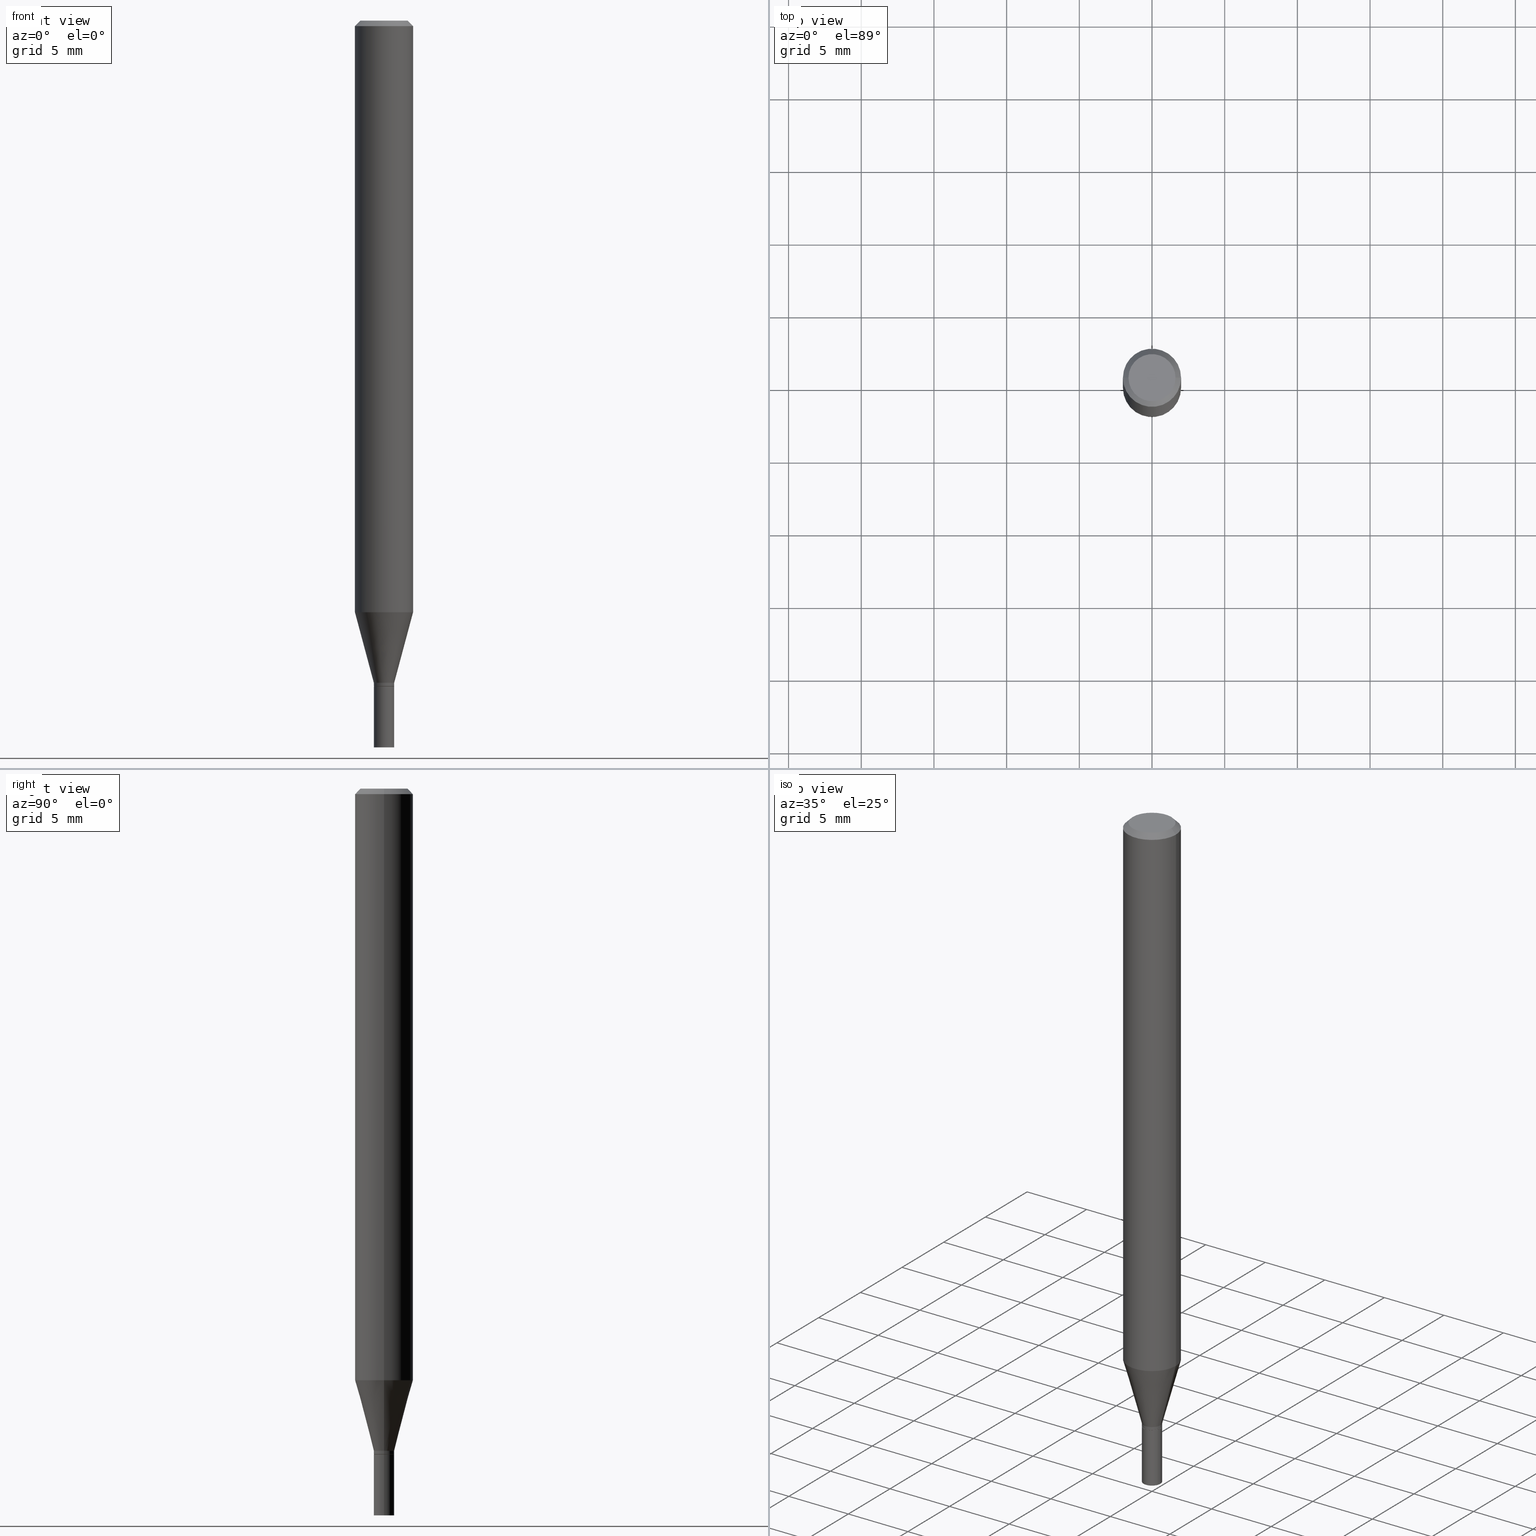
[diagram: canonical four-view strip — front | top / right | iso, engineering-drawing reading convention]
A machine part, canonical four-view strip (front | top / right | iso — engineering-drawing reading convention). The complete STEP part file that produces these views, byte-faithful:
ISO-10303-21;
HEADER;
FILE_DESCRIPTION (( 'STEP AP203' ),
    '1' );
FILE_NAME ('01887.STEP',
    '2024-03-20T02:28:08',
    ( '' ),
    ( '' ),
    'SwSTEP 2.0',
    'SolidWorks 2023',
    '' );
FILE_SCHEMA (( 'CONFIG_CONTROL_DESIGN' ));
ENDSEC;

DATA;
#1 = FACE_OUTER_BOUND ( 'NONE', #258, .T. ) ;
#2 = AXIS2_PLACEMENT_3D ( 'NONE', #396, #249, #355 ) ;
#3 = LINE ( 'NONE', #287, #421 ) ;
#4 = ORIENTED_EDGE ( 'NONE', *, *, #442, .F. ) ;
#5 = ORIENTED_EDGE ( 'NONE', *, *, #321, .F. ) ;
#6 = DIRECTION ( 'NONE',  ( 1.000000000000000000, -6.982962677686265922E-15, 0.000000000000000000 ) ) ;
#7 = VERTEX_POINT ( 'NONE', #110 ) ;
#8 = VERTEX_POINT ( 'NONE', #98 ) ;
#9 = DIRECTION ( 'NONE',  ( 0.2588190451025213501, 1.565188264969621968E-15, 0.9659258262890682012 ) ) ;
#10 = AXIS2_PLACEMENT_3D ( 'NONE', #301, #393, #96 ) ;
#11 = ADVANCED_FACE ( 'NONE', ( #113 ), #426, .T. ) ;
#12 = PERSON_AND_ORGANIZATION ( #402, #186 ) ;
#13 = DIRECTION ( 'NONE',  ( -2.438088387897960049E-29, 3.491481338843145188E-15, 1.000000000000000000 ) ) ;
#14 = ORIENTED_EDGE ( 'NONE', *, *, #244, .T. ) ;
#15 = ORIENTED_EDGE ( 'NONE', *, *, #332, .T. ) ;
#16 = LINE ( 'NONE', #19, #205 ) ;
#17 = LOCAL_TIME ( 22, 28, 8.000000000000000000, #371 ) ;
#18 = APPROVAL_ROLE ( '' ) ;
#19 = CARTESIAN_POINT ( 'NONE',  ( -0.02754999999999965463, 1.957545237019051472E-16, -1.355166617365209574E-30 ) ) ;
#20 = ORIENTED_EDGE ( 'NONE', *, *, #368, .T. ) ;
#21 = CARTESIAN_POINT ( 'NONE',  ( -0.06375000000000000111, 4.713499807438220366E-16, -5.010489548961637354E-16 ) ) ;
#22 = LINE ( 'NONE', #463, #117 ) ;
#23 = CARTESIAN_POINT ( 'NONE',  ( -0.07875000000000000056, -5.035263626391749269E-15, -1.602418998652472615 ) ) ;
#24 = CIRCLE ( 'NONE', #336, 0.02705000000000000113 ) ;
#25 = ORIENTED_EDGE ( 'NONE', *, *, #184, .T. ) ;
#26 = FACE_OUTER_BOUND ( 'NONE', #377, .T. ) ;
#27 = DIRECTION ( 'NONE',  ( -2.445468806185136597E-29, 3.491481338843145583E-15, 1.000000000000000000 ) ) ;
#28 = LINE ( 'NONE', #180, #152 ) ;
#29 = DIRECTION ( 'NONE',  ( 1.000000000000000000, -6.982962677686256455E-15, 0.000000000000000000 ) ) ;
#30 = CARTESIAN_POINT ( 'NONE',  ( 3.668203209277705088E-31, -5.237222008264718399E-17, -0.01499999999999999944 ) ) ;
#31 = PERSON_AND_ORGANIZATION ( #402, #186 ) ;
#32 = DIRECTION ( 'NONE',  ( -2.445468806185136877E-29, 3.491481338843145188E-15, 1.000000000000000000 ) ) ;
#33 = ORIENTED_EDGE ( 'NONE', *, *, #139, .T. ) ;
#34 = CONICAL_SURFACE ( 'NONE', #295, 0.07875000000000000056, 0.7853981633974651544 ) ;
#35 = CIRCLE ( 'NONE', #140, 0.02755000000000000157 ) ;
#36 = ORIENTED_EDGE ( 'NONE', *, *, #461, .T. ) ;
#37 = CARTESIAN_POINT ( 'NONE',  ( 0.02755000000000000157, -6.487870623838331454E-15, -1.803099999999999925 ) ) ;
#38 = CARTESIAN_POINT ( 'NONE',  ( 0.000000000000000000, 0.000000000000000000, 0.000000000000000000 ) ) ;
#39 = ADVANCED_FACE ( 'NONE', ( #212 ), #346, .T. ) ;
#40 = CIRCLE ( 'NONE', #167, 0.06375000000000000111 ) ;
#41 = AXIS2_PLACEMENT_3D ( 'NONE', #181, #466, #252 ) ;
#42 = CARTESIAN_POINT ( 'NONE',  ( 0.02754999999999965463, -6.454352402985435430E-15, -1.793499999999999872 ) ) ;
#43 = VERTEX_POINT ( 'NONE', #236 ) ;
#44 = CYLINDRICAL_SURFACE ( 'NONE', #265, 0.02754999999999965463 ) ;
#45 = ORIENTED_EDGE ( 'NONE', *, *, #332, .F. ) ;
#46 = APPLICATION_CONTEXT ( 'configuration controlled 3d designs of mechanical parts and assemblies' ) ;
#47 = ORIENTED_EDGE ( 'NONE', *, *, #234, .T. ) ;
#48 = EDGE_CURVE ( 'NONE', #328, #438, #185, .T. ) ;
#49 = PRODUCT_DEFINITION_SHAPE ( 'NONE', 'NONE',  #240 ) ;
#50 = CIRCLE ( 'NONE', #41, 0.02754999999999965463 ) ;
#51 = SHAPE_DEFINITION_REPRESENTATION ( #49, #307 ) ;
#52 = CARTESIAN_POINT ( 'NONE',  ( 4.409424804432419001E-29, -6.295490002068074661E-15, -1.803099999999999703 ) ) ;
#53 = VERTEX_POINT ( 'NONE', #21 ) ;
#54 = PERSON_AND_ORGANIZATION ( #402, #186 ) ;
#55 = DIRECTION ( 'NONE',  ( 1.000000000000000000, -6.982962677686266711E-15, 4.876176775795935793E-29 ) ) ;
#56 = DIRECTION ( 'NONE',  ( 1.000000000000000000, -6.982962677686265922E-15, 4.852736867747365646E-29 ) ) ;
#57 = DIRECTION ( 'NONE',  ( -2.445468806185136597E-29, 3.491481338843145583E-15, 1.000000000000000000 ) ) ;
#58 = DIRECTION ( 'NONE',  ( -2.445468806185136877E-29, 3.491481338843145188E-15, 1.000000000000000000 ) ) ;
#59 = APPROVAL_DATE_TIME ( #274, #136 ) ;
#60 = MANIFOLD_SOLID_BREP ( 'Body-Move/Copy2[1]', #86 ) ;
#61 = ADVANCED_FACE ( 'NONE', ( #266 ), #34, .T. ) ;
#62 = COORDINATED_UNIVERSAL_TIME_OFFSET ( 5, 0, .BEHIND. ) ;
#63 = CARTESIAN_POINT ( 'NONE',  ( 4.385948303893042033E-29, -6.261971781215181003E-15, -1.793499999999999872 ) ) ;
#64 = CONICAL_SURFACE ( 'NONE', #147, 0.02754999999999965463, 0.2617993877991500740 ) ;
#65 = CARTESIAN_POINT ( 'NONE',  ( 0.07875000000000000056, -6.144724341670621417E-15, -1.602418998652472615 ) ) ;
#66 = PERSON_AND_ORGANIZATION ( #402, #186 ) ;
#67 = DIRECTION ( 'NONE',  ( 2.438088387897960049E-29, -3.491481338843145188E-15, -1.000000000000000000 ) ) ;
#68 = LINE ( 'NONE', #383, #342 ) ;
#69 = EDGE_LOOP ( 'NONE', ( #14, #303, #203, #45 ) ) ;
#70 = CALENDAR_DATE ( 2024, 19, 3 ) ;
#71 = DIRECTION ( 'NONE',  ( 1.000000000000000000, -6.982962677686256455E-15, 0.000000000000000000 ) ) ;
#72 = DIRECTION ( 'NONE',  ( 1.000000000000000000, -6.982962677686256455E-15, 0.000000000000000000 ) ) ;
#73 = APPROVAL_PERSON_ORGANIZATION ( #97, #300, #18 ) ;
#74 = EDGE_CURVE ( 'NONE', #438, #328, #302, .T. ) ;
#75 = PLANE ( 'NONE',  #2 ) ;
#76 = EDGE_CURVE ( 'NONE', #7, #392, #124, .T. ) ;
#77 = EDGE_LOOP ( 'NONE', ( #367, #228, #33, #231 ) ) ;
#78 = DATE_TIME_ROLE ( 'creation_date' ) ;
#79 = CARTESIAN_POINT ( 'NONE',  ( 4.385948303893042033E-29, -6.261971781215181003E-15, -1.793499999999999872 ) ) ;
#80 = CIRCLE ( 'NONE', #335, 0.02705000000000000113 ) ;
#81 = CIRCLE ( 'NONE', #448, 0.02755000000000000157 ) ;
#82 = CC_DESIGN_APPROVAL ( #270, ( #233 ) ) ;
#83 = ADVANCED_FACE ( 'NONE', ( #314 ), #462, .T. ) ;
#84 = ORIENTED_EDGE ( 'NONE', *, *, #439, .T. ) ;
#85 = ORIENTED_EDGE ( 'NONE', *, *, #234, .F. ) ;
#86 = CLOSED_SHELL ( 'NONE', ( #108, #366, #11, #215 ) ) ;
#87 = AXIS2_PLACEMENT_3D ( 'NONE', #146, #67, #207 ) ;
#88 = PRODUCT_DEFINITION_FORMATION_WITH_SPECIFIED_SOURCE ( 'ANY', '', #260, .NOT_KNOWN. ) ;
#89 = ORIENTED_EDGE ( 'NONE', *, *, #48, .T. ) ;
#90 = ORIENTED_EDGE ( 'NONE', *, *, #155, .T. ) ;
#91 = PRODUCT_RELATED_PRODUCT_CATEGORY ( 'detail', '', ( #260 ) ) ;
#92 = ORIENTED_EDGE ( 'NONE', *, *, #298, .T. ) ;
#93 = CIRCLE ( 'NONE', #349, 0.02754999999999965463 ) ;
#94 = VECTOR ( 'NONE', #219, 39.37007874015748143 ) ;
#95 = DIRECTION ( 'NONE',  ( 1.000000000000000000, -6.982962677686265922E-15, 0.000000000000000000 ) ) ;
#96 = DIRECTION ( 'NONE',  ( 1.000000000000000000, -6.982962677686265922E-15, 4.876176775795936353E-29 ) ) ;
#97 = PERSON_AND_ORGANIZATION ( #402, #186 ) ;
#98 = CARTESIAN_POINT ( 'NONE',  ( 0.02755000000000000157, -7.065361637282988500E-15, -1.968500000000000139 ) ) ;
#99 = DIRECTION ( 'NONE',  ( -2.445468806185136597E-29, 3.491481338843145583E-15, 1.000000000000000000 ) ) ;
#100 = DIRECTION ( 'NONE',  ( -2.445468806185136877E-29, 3.491481338843145188E-15, 1.000000000000000000 ) ) ;
#101 = DIRECTION ( 'NONE',  ( -2.445468806185136597E-29, 3.491481338843145583E-15, 1.000000000000000000 ) ) ;
#102 = CARTESIAN_POINT ( 'NONE',  ( 0.02755000000000000157, -1.923806217702566451E-16, 1.343386701731780509E-30 ) ) ;
#103 = AXIS2_PLACEMENT_3D ( 'NONE', #299, #57, #198 ) ;
#104 = DIRECTION ( 'NONE',  ( -0.7071067811865656694, 7.493145998870420424E-15, 0.7071067811865294761 ) ) ;
#105 = AXIS2_PLACEMENT_3D ( 'NONE', #145, #107, #247 ) ;
#106 = ORIENTED_EDGE ( 'NONE', *, *, #321, .T. ) ;
#107 = DIRECTION ( 'NONE',  ( -2.445468806185136597E-29, 3.491481338843145583E-15, 1.000000000000000000 ) ) ;
#108 = ADVANCED_FACE ( 'NONE', ( #429 ), #337, .T. ) ;
#109 = CARTESIAN_POINT ( 'NONE',  ( -0.07875000000000000056, 5.595524044110789003E-16, -3.873661383575737792E-30 ) ) ;
#110 = CARTESIAN_POINT ( 'NONE',  ( -0.02754999999999965463, -6.097989737696748972E-15, -1.802599999999999980 ) ) ;
#111 = DIRECTION ( 'NONE',  ( 1.000000000000000000, -6.982962677686274599E-15, 0.000000000000000000 ) ) ;
#112 = CARTESIAN_POINT ( 'NONE',  ( 4.813905344975441835E-29, -6.872981015512731707E-15, -1.968500000000000139 ) ) ;
#113 = FACE_OUTER_BOUND ( 'NONE', #333, .T. ) ;
#114 = CARTESIAN_POINT ( 'NONE',  ( 4.385948303893042033E-29, -6.261971781215181003E-15, -1.793499999999999872 ) ) ;
#115 = ORIENTED_EDGE ( 'NONE', *, *, #400, .F. ) ;
#116 =( CONVERSION_BASED_UNIT ( 'INCH', #401 ) LENGTH_UNIT ( ) NAMED_UNIT ( #364 ) );
#117 = VECTOR ( 'NONE', #32, 39.37007874015748143 ) ;
#118 = LOCAL_TIME ( 22, 28, 8.000000000000000000, #238 ) ;
#119 = ORIENTED_EDGE ( 'NONE', *, *, #283, .F. ) ;
#120 = VERTEX_POINT ( 'NONE', #154 ) ;
#121 = FACE_OUTER_BOUND ( 'NONE', #257, .T. ) ;
#123 = VERTEX_POINT ( 'NONE', #133 ) ;
#122 = CC_DESIGN_PERSON_AND_ORGANIZATION_ASSIGNMENT ( #66, #422, ( #88 ) ) ;
#124 = CIRCLE ( 'NONE', #103, 0.02754999999999965463 ) ;
#125 = CARTESIAN_POINT ( 'NONE',  ( 0.000000000000000000, 0.000000000000000000, 0.000000000000000000 ) ) ;
#126 = EDGE_LOOP ( 'NONE', ( #166, #411, #92, #334 ) ) ;
#127 = ORIENTED_EDGE ( 'NONE', *, *, #373, .F. ) ;
#128 = CYLINDRICAL_SURFACE ( 'NONE', #190, 0.07875000000000000056 ) ;
#129 = DIRECTION ( 'NONE',  ( -2.445468806185136597E-29, 3.491481338843145583E-15, 1.000000000000000000 ) ) ;
#130 = CONICAL_SURFACE ( 'NONE', #370, 0.07875000000000000056, 0.7853981633974651544 ) ;
#131 = MECHANICAL_CONTEXT ( 'NONE', #46, 'mechanical' ) ;
#132 = CARTESIAN_POINT ( 'NONE',  ( 3.918665675643044057E-29, -5.594816030802827282E-15, -1.602418998652472615 ) ) ;
#133 = CARTESIAN_POINT ( 'NONE',  ( 0.02754999999999965463, -6.454352402985435430E-15, -1.793499999999999872 ) ) ;
#134 = DIRECTION ( 'NONE',  ( 0.000000000000000000, 0.000000000000000000, 1.000000000000000000 ) ) ;
#135 = CARTESIAN_POINT ( 'NONE',  ( -0.02705000000000000113, -6.103288192044966640E-15, -1.803099999999999703 ) ) ;
#136 = APPROVAL ( #218, 'UNSPECIFIED' ) ;
#137 = PERSON_AND_ORGANIZATION_ROLE ( 'creator' ) ;
#138 = APPROVAL_PERSON_ORGANIZATION ( #31, #136, #323 ) ;
#139 = EDGE_CURVE ( 'NONE', #123, #328, #193, .T. ) ;
#140 = AXIS2_PLACEMENT_3D ( 'NONE', #112, #395, #72 ) ;
#141 = DIRECTION ( 'NONE',  ( -2.445468806185136877E-29, 3.491481338843145188E-15, 1.000000000000000000 ) ) ;
#142 = DIRECTION ( 'NONE',  ( 1.000000000000000000, -6.982962677686265922E-15, 4.876176775795936353E-29 ) ) ;
#143 = DIRECTION ( 'NONE',  ( 1.000000000000000000, -6.982962677686274599E-15, 0.000000000000000000 ) ) ;
#144 = DIRECTION ( 'NONE',  ( 2.445468806185136597E-29, -3.491481338843145583E-15, -1.000000000000000000 ) ) ;
#145 = CARTESIAN_POINT ( 'NONE',  ( 4.409424804432419001E-29, -6.295490002068074661E-15, -1.803099999999999703 ) ) ;
#146 = CARTESIAN_POINT ( 'NONE',  ( 1.923806217703007474E-16, 0.02754999999999370799, -1.803099999999999925 ) ) ;
#147 = AXIS2_PLACEMENT_3D ( 'NONE', #210, #101, #387 ) ;
#148 = DIRECTION ( 'NONE',  ( 0.7071067811865594521, -7.319954787623295488E-15, -0.7071067811865355823 ) ) ;
#149 = CARTESIAN_POINT ( 'NONE',  ( 3.668203209277705088E-31, -5.237222008264718399E-17, -0.01499999999999999944 ) ) ;
#150 = EDGE_LOOP ( 'NONE', ( #454, #4 ) ) ;
#151 = EDGE_LOOP ( 'NONE', ( #345, #160 ) ) ;
#152 = VECTOR ( 'NONE', #281, 39.37007874015748143 ) ;
#153 = CONICAL_SURFACE ( 'NONE', #105, 0.02705000000000000113, 0.7853981633974739252 ) ;
#154 = CARTESIAN_POINT ( 'NONE',  ( -0.02705000000000000113, -6.100638964870857806E-15, -1.803099999999999703 ) ) ;
#155 = EDGE_CURVE ( 'NONE', #189, #313, #272, .T. ) ;
#156 = DATE_TIME_ROLE ( 'classification_date' ) ;
#157 = ORIENTED_EDGE ( 'NONE', *, *, #451, .T. ) ;
#158 = ORIENTED_EDGE ( 'NONE', *, *, #425, .T. ) ;
#159 = CARTESIAN_POINT ( 'NONE',  ( 0.02754999999999965463, -1.923806217702542292E-16, 1.343386701731763518E-30 ) ) ;
#160 = ORIENTED_EDGE ( 'NONE', *, *, #439, .F. ) ;
#161 = AXIS2_PLACEMENT_3D ( 'NONE', #251, #164, #55 ) ;
#162 = CC_DESIGN_APPROVAL ( #136, ( #88 ) ) ;
#163 = DATE_AND_TIME ( #374, #17 ) ;
#164 = DIRECTION ( 'NONE',  ( -2.445468806185136597E-29, 3.491481338843145583E-15, 1.000000000000000000 ) ) ;
#165 = DIRECTION ( 'NONE',  ( 1.000000000000000000, -6.982962677686265922E-15, 4.876176775795935232E-29 ) ) ;
#166 = ORIENTED_EDGE ( 'NONE', *, *, #341, .F. ) ;
#167 = AXIS2_PLACEMENT_3D ( 'NONE', #460, #99, #267 ) ;
#168 = PERSON_AND_ORGANIZATION ( #402, #186 ) ;
#169 = CARTESIAN_POINT ( 'NONE',  ( -0.02755000000000000157, -6.388480985088496632E-15, -1.803099999999999925 ) ) ;
#170 = PERSON_AND_ORGANIZATION ( #402, #186 ) ;
#171 = APPLICATION_CONTEXT ( 'configuration controlled 3d designs of mechanical parts and assemblies' ) ;
#172 = CALENDAR_DATE ( 2024, 19, 3 ) ;
#173 = CARTESIAN_POINT ( 'NONE',  ( 4.409424804432419562E-29, -6.295490002068075450E-15, -1.803099999999999925 ) ) ;
#174 = ORIENTED_EDGE ( 'NONE', *, *, #425, .F. ) ;
#175 = CONICAL_SURFACE ( 'NONE', #288, 0.02705000000000000113, 0.7853981633974739252 ) ;
#176 = CARTESIAN_POINT ( 'NONE',  ( 3.918665675643044057E-29, -5.594816030802827282E-15, -1.602418998652472615 ) ) ;
#177 = DESIGN_CONTEXT ( 'detailed design', #171, 'design' ) ;
#178 =( GEOMETRIC_REPRESENTATION_CONTEXT ( 3 ) GLOBAL_UNCERTAINTY_ASSIGNED_CONTEXT ( ( #305 ) ) GLOBAL_UNIT_ASSIGNED_CONTEXT ( ( #116, #290, #372 ) ) REPRESENTATION_CONTEXT ( 'NONE', 'WORKASPACE' ) );
#179 = ORIENTED_EDGE ( 'NONE', *, *, #405, .T. ) ;
#180 = CARTESIAN_POINT ( 'NONE',  ( 0.07875000000000000056, -5.499083108677934443E-16, 3.839989210939299016E-30 ) ) ;
#181 = CARTESIAN_POINT ( 'NONE',  ( 4.408202070029327321E-29, -6.293744261398653946E-15, -1.802599999999999980 ) ) ;
#182 = DIRECTION ( 'NONE',  ( -2.445468806185136597E-29, 3.491481338843145583E-15, 1.000000000000000000 ) ) ;
#183 = ORIENTED_EDGE ( 'NONE', *, *, #139, .F. ) ;
#184 = EDGE_CURVE ( 'NONE', #392, #123, #293, .T. ) ;
#185 = CIRCLE ( 'NONE', #386, 0.07875000000000000056 ) ;
#186 = ORGANIZATION ( 'UNSPECIFIED', 'UNSPECIFIED', '' ) ;
#187 = ORIENTED_EDGE ( 'NONE', *, *, #76, .T. ) ;
#188 = ADVANCED_FACE ( 'NONE', ( #121 ), #44, .T. ) ;
#189 = VERTEX_POINT ( 'NONE', #365 ) ;
#190 = AXIS2_PLACEMENT_3D ( 'NONE', #263, #379, #165 ) ;
#191 = EDGE_CURVE ( 'NONE', #406, #344, #81, .T. ) ;
#192 = CC_DESIGN_PERSON_AND_ORGANIZATION_ASSIGNMENT ( #170, #137, ( #88 ) ) ;
#193 = LINE ( 'NONE', #42, #220 ) ;
#194 = ORIENTED_EDGE ( 'NONE', *, *, #360, .T. ) ;
#195 = ORIENTED_EDGE ( 'NONE', *, *, #442, .T. ) ;
#196 = AXIS2_PLACEMENT_3D ( 'NONE', #343, #453, #6 ) ;
#197 = VECTOR ( 'NONE', #104, 39.37007874015748143 ) ;
#198 = DIRECTION ( 'NONE',  ( 1.000000000000000000, -6.982962677686274599E-15, 0.000000000000000000 ) ) ;
#199 = APPLICATION_PROTOCOL_DEFINITION ( 'international standard', 'config_control_design', 1994, #171 ) ;
#200 = ORIENTED_EDGE ( 'NONE', *, *, #400, .T. ) ;
#201 = DIRECTION ( 'NONE',  ( 0.7071067811865656694, -2.468850131082446387E-15, 0.7071067811865294761 ) ) ;
#202 = EDGE_CURVE ( 'NONE', #297, #344, #22, .T. ) ;
#203 = ORIENTED_EDGE ( 'NONE', *, *, #461, .F. ) ;
#204 = CC_DESIGN_DATE_AND_TIME_ASSIGNMENT ( #326, #78, ( #240 ) ) ;
#205 = VECTOR ( 'NONE', #141, 39.37007874015748143 ) ;
#206 = FACE_OUTER_BOUND ( 'NONE', #415, .T. ) ;
#207 = DIRECTION ( 'NONE',  ( -1.000000000000000000, 6.982962677686265922E-15, -4.876176775795935793E-29 ) ) ;
#208 = DIRECTION ( 'NONE',  ( -2.445468806185136597E-29, 3.491481338843145583E-15, 1.000000000000000000 ) ) ;
#209 = APPLICATION_PROTOCOL_DEFINITION ( 'international standard', 'config_control_design', 1994, #46 ) ;
#210 = CARTESIAN_POINT ( 'NONE',  ( 4.385948303893042033E-29, -6.261971781215181003E-15, -1.793499999999999872 ) ) ;
#211 = DIRECTION ( 'NONE',  ( 2.438088387897960049E-29, -3.491481338843145188E-15, -1.000000000000000000 ) ) ;
#212 = FACE_OUTER_BOUND ( 'NONE', #126, .T. ) ;
#213 = CARTESIAN_POINT ( 'NONE',  ( 4.409424804432419562E-29, -6.295490002068075450E-15, -1.803099999999999925 ) ) ;
#214 = FACE_OUTER_BOUND ( 'NONE', #150, .T. ) ;
#215 = ADVANCED_FACE ( 'NONE', ( #206 ), #269, .F. ) ;
#216 = DIRECTION ( 'NONE',  ( -2.445468806185136597E-29, 3.491481338843145583E-15, 1.000000000000000000 ) ) ;
#217 = ORIENTED_EDGE ( 'NONE', *, *, #368, .F. ) ;
#218 = APPROVAL_STATUS ( 'not_yet_approved' ) ;
#219 = DIRECTION ( 'NONE',  ( -0.7071067811865594521, 2.468850131082381701E-15, -0.7071067811865355823 ) ) ;
#220 = VECTOR ( 'NONE', #9, 39.37007874015747433 ) ;
#221 = APPROVAL_PERSON_ORGANIZATION ( #12, #270, #443 ) ;
#222 = ORIENTED_EDGE ( 'NONE', *, *, #237, .T. ) ;
#223 = DIRECTION ( 'NONE',  ( 1.000000000000000000, -6.982962677686266711E-15, 4.876176775795935793E-29 ) ) ;
#224 = ORIENTED_EDGE ( 'NONE', *, *, #184, .F. ) ;
#225 = EDGE_LOOP ( 'NONE', ( #89, #339, #217, #444 ) ) ;
#226 = LOCAL_TIME ( 22, 28, 8.000000000000000000, #420 ) ;
#227 = CARTESIAN_POINT ( 'NONE',  ( 1.225299589570224228E-44, -1.749403075866805544E-30, -5.010489548961605800E-16 ) ) ;
#228 = ORIENTED_EDGE ( 'NONE', *, *, #283, .T. ) ;
#229 = ORIENTED_EDGE ( 'NONE', *, *, #434, .T. ) ;
#230 = DIRECTION ( 'NONE',  ( -2.445468806185136597E-29, 3.491481338843145583E-15, 1.000000000000000000 ) ) ;
#231 = ORIENTED_EDGE ( 'NONE', *, *, #74, .F. ) ;
#232 = CLOSED_SHELL ( 'NONE', ( #83, #430, #320, #390, #327, #268, #39, #61, #315, #369, #279, #188 ) ) ;
#233 = SECURITY_CLASSIFICATION ( '', '', #350 ) ;
#234 = EDGE_CURVE ( 'NONE', #8, #406, #419, .T. ) ;
#235 = FACE_OUTER_BOUND ( 'NONE', #225, .T. ) ;
#236 = CARTESIAN_POINT ( 'NONE',  ( -0.02754999999999965463, -5.550740441952512649E-15, -1.793499999999999872 ) ) ;
#237 = EDGE_CURVE ( 'NONE', #8, #297, #376, .T. ) ;
#238 = COORDINATED_UNIVERSAL_TIME_OFFSET ( 5, 0, .BEHIND. ) ;
#239 = CARTESIAN_POINT ( 'NONE',  ( 3.668203209277705088E-31, -5.237222008264718399E-17, -0.01499999999999999944 ) ) ;
#240 = PRODUCT_DEFINITION ( 'UNKNOWN', '', #88, #177 ) ;
#241 = FACE_OUTER_BOUND ( 'NONE', #317, .T. ) ;
#242 = DIRECTION ( 'NONE',  ( 1.000000000000000000, 0.000000000000000000, 0.000000000000000000 ) ) ;
#243 = DIRECTION ( 'NONE',  ( 1.000000000000000000, -6.982962677686273810E-15, 0.000000000000000000 ) ) ;
#244 = EDGE_CURVE ( 'NONE', #246, #120, #80, .T. ) ;
#245 = DIRECTION ( 'NONE',  ( -2.445468806185136597E-29, 3.491481338843145583E-15, 1.000000000000000000 ) ) ;
#246 = VERTEX_POINT ( 'NONE', #347 ) ;
#247 = DIRECTION ( 'NONE',  ( 1.000000000000000000, -6.982962677686273810E-15, 0.000000000000000000 ) ) ;
#248 = CARTESIAN_POINT ( 'NONE',  ( -0.02755000000000000157, -6.388480985088496632E-15, -1.968500000000000139 ) ) ;
#249 = DIRECTION ( 'NONE',  ( -2.438088387897960049E-29, 3.491481338843145188E-15, 1.000000000000000000 ) ) ;
#250 = AXIS2_PLACEMENT_3D ( 'NONE', #227, #412, #56 ) ;
#251 = CARTESIAN_POINT ( 'NONE',  ( 0.000000000000000000, 0.000000000000000000, 0.000000000000000000 ) ) ;
#252 = DIRECTION ( 'NONE',  ( 1.000000000000000000, -6.982962677686274599E-15, 0.000000000000000000 ) ) ;
#253 = CC_DESIGN_PERSON_AND_ORGANIZATION_ASSIGNMENT ( #168, #457, ( #233 ) ) ;
#254 = CARTESIAN_POINT ( 'NONE',  ( -0.02754999999999965463, -6.066217257513276029E-15, -1.793499999999999872 ) ) ;
#255 = AXIS2_PLACEMENT_3D ( 'NONE', #79, #354, #143 ) ;
#256 = AXIS2_PLACEMENT_3D ( 'NONE', #213, #433, #29 ) ;
#257 = EDGE_LOOP ( 'NONE', ( #331, #187, #25, #119 ) ) ;
#258 = EDGE_LOOP ( 'NONE', ( #106, #264 ) ) ;
#259 = CIRCLE ( 'NONE', #378, 0.07875000000000000056 ) ;
#260 = PRODUCT ( '01887', '01887', '', ( #131 ) ) ;
#261 = EDGE_LOOP ( 'NONE', ( #115, #5, #158, #90 ) ) ;
#262 = CC_DESIGN_DATE_AND_TIME_ASSIGNMENT ( #407, #156, ( #233 ) ) ;
#263 = CARTESIAN_POINT ( 'NONE',  ( 0.000000000000000000, 0.000000000000000000, 0.000000000000000000 ) ) ;
#264 = ORIENTED_EDGE ( 'NONE', *, *, #325, .T. ) ;
#265 = AXIS2_PLACEMENT_3D ( 'NONE', #125, #316, #223 ) ;
#266 = FACE_OUTER_BOUND ( 'NONE', #261, .T. ) ;
#267 = DIRECTION ( 'NONE',  ( 1.000000000000000000, -6.982962677686265922E-15, 4.852736867747365646E-29 ) ) ;
#268 = ADVANCED_FACE ( 'NONE', ( #322 ), #404, .T. ) ;
#269 = PLANE ( 'NONE',  #87 ) ;
#270 = APPROVAL ( #413, 'UNSPECIFIED' ) ;
#271 = VECTOR ( 'NONE', #358, 39.37007874015748143 ) ;
#272 = CIRCLE ( 'NONE', #196, 0.07875000000000000056 ) ;
#273 = DIRECTION ( 'NONE',  ( 1.000000000000000000, -6.982962677686256455E-15, 0.000000000000000000 ) ) ;
#274 = DATE_AND_TIME ( #306, #361 ) ;
#275 = CARTESIAN_POINT ( 'NONE',  ( 0.06375000000000000111, -5.149965923825460154E-16, -5.010489548961572273E-16 ) ) ;
#276 = ORIENTED_EDGE ( 'NONE', *, *, #76, .F. ) ;
#277 = FACE_OUTER_BOUND ( 'NONE', #437, .T. ) ;
#278 = DIRECTION ( 'NONE',  ( -2.445468806185136597E-29, 3.491481338843145583E-15, 1.000000000000000000 ) ) ;
#279 = ADVANCED_FACE ( 'NONE', ( #277 ), #175, .T. ) ;
#280 = DIRECTION ( 'NONE',  ( -1.000000000000000000, 6.982962677686265922E-15, 0.000000000000000000 ) ) ;
#281 = DIRECTION ( 'NONE',  ( -2.445468806185136877E-29, 3.491481338843145188E-15, 1.000000000000000000 ) ) ;
#282 = CARTESIAN_POINT ( 'NONE',  ( -0.07875000000000000056, 4.975360907851462665E-16, -0.01499999999999999944 ) ) ;
#283 = EDGE_CURVE ( 'NONE', #43, #123, #93, .T. ) ;
#284 = DIRECTION ( 'NONE',  ( 2.445468806185136597E-29, -3.491481338843145583E-15, -1.000000000000000000 ) ) ;
#285 = AXIS2_PLACEMENT_3D ( 'NONE', #447, #129, #142 ) ;
#286 = CARTESIAN_POINT ( 'NONE',  ( 4.813905344975441835E-29, -6.872981015512731707E-15, -1.968500000000000139 ) ) ;
#287 = CARTESIAN_POINT ( 'NONE',  ( 0.07875000000000000056, -5.926364374071552647E-16, -0.01499999999999999944 ) ) ;
#288 = AXIS2_PLACEMENT_3D ( 'NONE', #427, #432, #385 ) ;
#289 = CC_DESIGN_SECURITY_CLASSIFICATION ( #233, ( #88 ) ) ;
#290 =( NAMED_UNIT ( * ) PLANE_ANGLE_UNIT ( ) SI_UNIT ( $, .RADIAN. ) );
#291 = ORIENTED_EDGE ( 'NONE', *, *, #48, .F. ) ;
#292 = ORIENTED_EDGE ( 'NONE', *, *, #191, .T. ) ;
#293 = LINE ( 'NONE', #159, #397 ) ;
#294 = EDGE_LOOP ( 'NONE', ( #36, #194, #375, #224 ) ) ;
#295 = AXIS2_PLACEMENT_3D ( 'NONE', #239, #144, #280 ) ;
#296 = AXIS2_PLACEMENT_3D ( 'NONE', #38, #134, #242 ) ;
#297 = VERTEX_POINT ( 'NONE', #248 ) ;
#298 = EDGE_CURVE ( 'NONE', #328, #313, #28, .T. ) ;
#299 = CARTESIAN_POINT ( 'NONE',  ( 4.408202070029327321E-29, -6.293744261398653946E-15, -1.802599999999999980 ) ) ;
#300 = APPROVAL ( #418, 'UNSPECIFIED' ) ;
#301 = CARTESIAN_POINT ( 'NONE',  ( 0.000000000000000000, 0.000000000000000000, 0.000000000000000000 ) ) ;
#302 = CIRCLE ( 'NONE', #435, 0.07875000000000000056 ) ;
#303 = ORIENTED_EDGE ( 'NONE', *, *, #373, .T. ) ;
#304 = PERSON_AND_ORGANIZATION_ROLE ( 'design_owner' ) ;
#305 = UNCERTAINTY_MEASURE_WITH_UNIT (LENGTH_MEASURE( 1.000000000000000082E-05 ), #116, 'distance_accuracy_value', 'NONE');
#306 = CALENDAR_DATE ( 2024, 19, 3 ) ;
#307 = ADVANCED_BREP_SHAPE_REPRESENTATION ( '01887', ( #60, #362, #296 ), #178 ) ;
#308 = PLANE ( 'NONE',  #431 ) ;
#309 = PLANE ( 'NONE',  #414 ) ;
#310 = DIRECTION ( 'NONE',  ( -2.445468806185136597E-29, 3.491481338843145583E-15, 1.000000000000000000 ) ) ;
#311 = LINE ( 'NONE', #254, #459 ) ;
#312 = AXIS2_PLACEMENT_3D ( 'NONE', #416, #216, #449 ) ;
#313 = VERTEX_POINT ( 'NONE', #319 ) ;
#314 = FACE_OUTER_BOUND ( 'NONE', #294, .T. ) ;
#315 = ADVANCED_FACE ( 'NONE', ( #1 ), #309, .F. ) ;
#316 = DIRECTION ( 'NONE',  ( -2.445468806185136597E-29, 3.491481338843145583E-15, 1.000000000000000000 ) ) ;
#317 = EDGE_LOOP ( 'NONE', ( #229, #179, #291, #183 ) ) ;
#318 = DIRECTION ( 'NONE',  ( 1.000000000000000000, -6.982962677686261977E-15, 0.000000000000000000 ) ) ;
#319 = CARTESIAN_POINT ( 'NONE',  ( 0.07875000000000000056, -6.022805309504406221E-16, -0.01499999999999999944 ) ) ;
#320 = ADVANCED_FACE ( 'NONE', ( #26 ), #130, .T. ) ;
#321 = EDGE_CURVE ( 'NONE', #53, #363, #330, .T. ) ;
#322 = FACE_OUTER_BOUND ( 'NONE', #77, .T. ) ;
#323 = APPROVAL_ROLE ( '' ) ;
#324 = CARTESIAN_POINT ( 'NONE',  ( 0.02754999999999965463, -6.486124883168908373E-15, -1.802599999999999980 ) ) ;
#325 = EDGE_CURVE ( 'NONE', #363, #53, #40, .T. ) ;
#326 = DATE_AND_TIME ( #70, #436 ) ;
#327 = ADVANCED_FACE ( 'NONE', ( #241 ), #64, .T. ) ;
#328 = VERTEX_POINT ( 'NONE', #65 ) ;
#329 = DIRECTION ( 'NONE',  ( -1.000000000000000000, 6.982962677686265922E-15, 0.000000000000000000 ) ) ;
#330 = CIRCLE ( 'NONE', #250, 0.06375000000000000111 ) ;
#331 = ORIENTED_EDGE ( 'NONE', *, *, #360, .F. ) ;
#332 = EDGE_CURVE ( 'NONE', #246, #392, #68, .T. ) ;
#333 = EDGE_LOOP ( 'NONE', ( #441, #195, #47, #391 ) ) ;
#334 = ORIENTED_EDGE ( 'NONE', *, *, #155, .F. ) ;
#335 = AXIS2_PLACEMENT_3D ( 'NONE', #394, #182, #243 ) ;
#336 = AXIS2_PLACEMENT_3D ( 'NONE', #464, #278, #428 ) ;
#337 = CYLINDRICAL_SURFACE ( 'NONE', #285, 0.02755000000000000157 ) ;
#338 = CC_DESIGN_PERSON_AND_ORGANIZATION_ASSIGNMENT ( #54, #304, ( #260 ) ) ;
#339 = ORIENTED_EDGE ( 'NONE', *, *, #341, .T. ) ;
#340 = LINE ( 'NONE', #109, #408 ) ;
#341 = EDGE_CURVE ( 'NONE', #438, #189, #340, .T. ) ;
#342 = VECTOR ( 'NONE', #201, 39.37007874015748143 ) ;
#343 = CARTESIAN_POINT ( 'NONE',  ( 3.668203209277705088E-31, -5.237222008264718399E-17, -0.01499999999999999944 ) ) ;
#344 = VERTEX_POINT ( 'NONE', #169 ) ;
#345 = ORIENTED_EDGE ( 'NONE', *, *, #244, .F. ) ;
#346 = CYLINDRICAL_SURFACE ( 'NONE', #312, 0.07875000000000000056 ) ;
#347 = CARTESIAN_POINT ( 'NONE',  ( 0.02705000000000000113, -6.484379142499488447E-15, -1.803099999999999703 ) ) ;
#348 = DIRECTION ( 'NONE',  ( 1.000000000000000000, -6.982962677686274599E-15, 0.000000000000000000 ) ) ;
#349 = AXIS2_PLACEMENT_3D ( 'NONE', #63, #399, #111 ) ;
#350 = SECURITY_CLASSIFICATION_LEVEL ( 'unclassified' ) ;
#351 = DIRECTION ( 'NONE',  ( -1.000000000000000000, 6.982962677686265922E-15, -4.876176775795935793E-29 ) ) ;
#352 = CC_DESIGN_APPROVAL ( #300, ( #240 ) ) ;
#353 = ORIENTED_EDGE ( 'NONE', *, *, #202, .T. ) ;
#354 = DIRECTION ( 'NONE',  ( -2.445468806185136597E-29, 3.491481338843145583E-15, 1.000000000000000000 ) ) ;
#355 = DIRECTION ( 'NONE',  ( 1.000000000000000000, -6.982962677686265922E-15, 4.876176775795935793E-29 ) ) ;
#356 = CC_DESIGN_PERSON_AND_ORGANIZATION_ASSIGNMENT ( #452, #384, ( #240 ) ) ;
#357 = EDGE_LOOP ( 'NONE', ( #222, #353, #465, #85 ) ) ;
#358 = DIRECTION ( 'NONE',  ( -2.445468806185136877E-29, 3.491481338843145188E-15, 1.000000000000000000 ) ) ;
#359 =( LENGTH_UNIT ( ) NAMED_UNIT ( * ) SI_UNIT ( $, .METRE. ) );
#360 = EDGE_CURVE ( 'NONE', #7, #43, #16, .T. ) ;
#361 = LOCAL_TIME ( 22, 28, 8.000000000000000000, #440 ) ;
#362 = MANIFOLD_SOLID_BREP ( 'Body-Move/Copy2[2]', #232 ) ;
#363 = VERTEX_POINT ( 'NONE', #275 ) ;
#364 = DIMENSIONAL_EXPONENTS ( 1.000000000000000000, 0.000000000000000000, 0.000000000000000000, 0.000000000000000000, 0.000000000000000000, 0.000000000000000000, 0.000000000000000000 ) ;
#365 = CARTESIAN_POINT ( 'NONE',  ( -0.07875000000000000056, -2.264041721031658971E-15, -0.01499999999999999944 ) ) ;
#366 = ADVANCED_FACE ( 'NONE', ( #214 ), #75, .F. ) ;
#367 = ORIENTED_EDGE ( 'NONE', *, *, #405, .F. ) ;
#368 = EDGE_CURVE ( 'NONE', #313, #189, #259, .T. ) ;
#369 = ADVANCED_FACE ( 'NONE', ( #417 ), #308, .F. ) ;
#370 = AXIS2_PLACEMENT_3D ( 'NONE', #149, #284, #329 ) ;
#371 = COORDINATED_UNIVERSAL_TIME_OFFSET ( 5, 0, .BEHIND. ) ;
#372 =( NAMED_UNIT ( * ) SI_UNIT ( $, .STERADIAN. ) SOLID_ANGLE_UNIT ( ) );
#373 = EDGE_CURVE ( 'NONE', #120, #7, #446, .T. ) ;
#374 = CALENDAR_DATE ( 2024, 19, 3 ) ;
#375 = ORIENTED_EDGE ( 'NONE', *, *, #434, .F. ) ;
#376 = CIRCLE ( 'NONE', #458, 0.02755000000000000157 ) ;
#377 = EDGE_LOOP ( 'NONE', ( #380, #200, #20, #174 ) ) ;
#378 = AXIS2_PLACEMENT_3D ( 'NONE', #30, #230, #95 ) ;
#379 = DIRECTION ( 'NONE',  ( -2.445468806185136597E-29, 3.491481338843145583E-15, 1.000000000000000000 ) ) ;
#380 = ORIENTED_EDGE ( 'NONE', *, *, #325, .F. ) ;
#381 = APPROVAL_DATE_TIME ( #445, #300 ) ;
#382 = DIRECTION ( 'NONE',  ( 1.000000000000000000, -6.982962677686261977E-15, 0.000000000000000000 ) ) ;
#383 = CARTESIAN_POINT ( 'NONE',  ( 0.02705000000000000113, -6.484379142499488447E-15, -1.803099999999999703 ) ) ;
#384 = PERSON_AND_ORGANIZATION_ROLE ( 'creator' ) ;
#385 = DIRECTION ( 'NONE',  ( 1.000000000000000000, -6.982962677686273810E-15, 0.000000000000000000 ) ) ;
#386 = AXIS2_PLACEMENT_3D ( 'NONE', #132, #27, #318 ) ;
#387 = DIRECTION ( 'NONE',  ( 1.000000000000000000, -6.982962677686274599E-15, 0.000000000000000000 ) ) ;
#388 = CIRCLE ( 'NONE', #256, 0.02755000000000000157 ) ;
#389 = CALENDAR_DATE ( 2024, 19, 3 ) ;
#390 = ADVANCED_FACE ( 'NONE', ( #235 ), #128, .T. ) ;
#391 = ORIENTED_EDGE ( 'NONE', *, *, #451, .F. ) ;
#392 = VERTEX_POINT ( 'NONE', #324 ) ;
#393 = DIRECTION ( 'NONE',  ( -2.445468806185136597E-29, 3.491481338843145583E-15, 1.000000000000000000 ) ) ;
#394 = CARTESIAN_POINT ( 'NONE',  ( 4.409424804432419001E-29, -6.295490002068074661E-15, -1.803099999999999703 ) ) ;
#395 = DIRECTION ( 'NONE',  ( -2.445468806185136597E-29, 3.491481338843145583E-15, 1.000000000000000000 ) ) ;
#396 = CARTESIAN_POINT ( 'NONE',  ( 4.848906058769445083E-29, -6.822858001242805551E-15, -1.968500000000000139 ) ) ;
#397 = VECTOR ( 'NONE', #100, 39.37007874015748143 ) ;
#398 = DIRECTION ( 'NONE',  ( -2.445468806185136597E-29, 3.491481338843145583E-15, 1.000000000000000000 ) ) ;
#399 = DIRECTION ( 'NONE',  ( -2.445468806185136597E-29, 3.491481338843145583E-15, 1.000000000000000000 ) ) ;
#400 = EDGE_CURVE ( 'NONE', #363, #313, #3, .T. ) ;
#401 = LENGTH_MEASURE_WITH_UNIT ( LENGTH_MEASURE( 0.02539999999999999897 ), #359 );
#402 = PERSON ( 'UNSPECIFIED', 'UNSPECIFIED', 'UNSPECIFIED', ('UNSPECIFIED'), ('UNSPECIFIED'), ('UNSPECIFIED') ) ;
#403 = DIRECTION ( 'NONE',  ( -0.2588190451025213501, 5.211531920934551042E-15, 0.9659258262890682012 ) ) ;
#404 = CONICAL_SURFACE ( 'NONE', #255, 0.02754999999999965463, 0.2617993877991500740 ) ;
#405 = EDGE_CURVE ( 'NONE', #43, #438, #311, .T. ) ;
#406 = VERTEX_POINT ( 'NONE', #37 ) ;
#407 = DATE_AND_TIME ( #389, #226 ) ;
#408 = VECTOR ( 'NONE', #58, 39.37007874015748143 ) ;
#409 = CIRCLE ( 'NONE', #450, 0.02754999999999965463 ) ;
#410 = APPROVAL_DATE_TIME ( #163, #270 ) ;
#411 = ORIENTED_EDGE ( 'NONE', *, *, #74, .T. ) ;
#412 = DIRECTION ( 'NONE',  ( -2.445468806185136597E-29, 3.491481338843145583E-15, 1.000000000000000000 ) ) ;
#413 = APPROVAL_STATUS ( 'not_yet_approved' ) ;
#414 = AXIS2_PLACEMENT_3D ( 'NONE', #423, #211, #351 ) ;
#415 = EDGE_LOOP ( 'NONE', ( #292, #157 ) ) ;
#416 = CARTESIAN_POINT ( 'NONE',  ( 0.000000000000000000, 0.000000000000000000, 0.000000000000000000 ) ) ;
#417 = FACE_OUTER_BOUND ( 'NONE', #151, .T. ) ;
#418 = APPROVAL_STATUS ( 'not_yet_approved' ) ;
#419 = LINE ( 'NONE', #102, #271 ) ;
#420 = COORDINATED_UNIVERSAL_TIME_OFFSET ( 5, 0, .BEHIND. ) ;
#421 = VECTOR ( 'NONE', #148, 39.37007874015748143 ) ;
#422 = PERSON_AND_ORGANIZATION_ROLE ( 'design_supplier' ) ;
#423 = CARTESIAN_POINT ( 'NONE',  ( 4.451638707024993845E-16, 0.06375000000000000111, -4.731064127993307711E-16 ) ) ;
#424 = LINE ( 'NONE', #282, #94 ) ;
#425 = EDGE_CURVE ( 'NONE', #53, #189, #424, .T. ) ;
#426 = CYLINDRICAL_SURFACE ( 'NONE', #10, 0.02755000000000000157 ) ;
#427 = CARTESIAN_POINT ( 'NONE',  ( 4.409424804432419001E-29, -6.295490002068074661E-15, -1.803099999999999703 ) ) ;
#428 = DIRECTION ( 'NONE',  ( 1.000000000000000000, -6.982962677686273810E-15, 0.000000000000000000 ) ) ;
#429 = FACE_OUTER_BOUND ( 'NONE', #357, .T. ) ;
#430 = ADVANCED_FACE ( 'NONE', ( #456 ), #153, .T. ) ;
#431 = AXIS2_PLACEMENT_3D ( 'NONE', #52, #13, #455 ) ;
#432 = DIRECTION ( 'NONE',  ( -2.445468806185136597E-29, 3.491481338843145583E-15, 1.000000000000000000 ) ) ;
#433 = DIRECTION ( 'NONE',  ( -2.445468806185136597E-29, 3.491481338843145583E-15, 1.000000000000000000 ) ) ;
#434 = EDGE_CURVE ( 'NONE', #123, #43, #409, .T. ) ;
#435 = AXIS2_PLACEMENT_3D ( 'NONE', #176, #398, #382 ) ;
#436 = LOCAL_TIME ( 22, 28, 8.000000000000000000, #62 ) ;
#437 = EDGE_LOOP ( 'NONE', ( #127, #84, #15, #276 ) ) ;
#438 = VERTEX_POINT ( 'NONE', #23 ) ;
#439 = EDGE_CURVE ( 'NONE', #120, #246, #24, .T. ) ;
#440 = COORDINATED_UNIVERSAL_TIME_OFFSET ( 5, 0, .BEHIND. ) ;
#441 = ORIENTED_EDGE ( 'NONE', *, *, #202, .F. ) ;
#442 = EDGE_CURVE ( 'NONE', #297, #8, #35, .T. ) ;
#443 = APPROVAL_ROLE ( '' ) ;
#444 = ORIENTED_EDGE ( 'NONE', *, *, #298, .F. ) ;
#445 = DATE_AND_TIME ( #172, #118 ) ;
#446 = LINE ( 'NONE', #135, #197 ) ;
#447 = CARTESIAN_POINT ( 'NONE',  ( 0.000000000000000000, 0.000000000000000000, 0.000000000000000000 ) ) ;
#448 = AXIS2_PLACEMENT_3D ( 'NONE', #173, #310, #273 ) ;
#449 = DIRECTION ( 'NONE',  ( 1.000000000000000000, -6.982962677686265922E-15, 4.876176775795935232E-29 ) ) ;
#450 = AXIS2_PLACEMENT_3D ( 'NONE', #114, #208, #348 ) ;
#451 = EDGE_CURVE ( 'NONE', #344, #406, #388, .T. ) ;
#452 = PERSON_AND_ORGANIZATION ( #402, #186 ) ;
#453 = DIRECTION ( 'NONE',  ( -2.445468806185136597E-29, 3.491481338843145583E-15, 1.000000000000000000 ) ) ;
#454 = ORIENTED_EDGE ( 'NONE', *, *, #237, .F. ) ;
#455 = DIRECTION ( 'NONE',  ( 1.000000000000000000, -6.982962677686265922E-15, 4.876176775795935793E-29 ) ) ;
#456 = FACE_OUTER_BOUND ( 'NONE', #69, .T. ) ;
#457 = PERSON_AND_ORGANIZATION_ROLE ( 'classification_officer' ) ;
#458 = AXIS2_PLACEMENT_3D ( 'NONE', #286, #245, #71 ) ;
#459 = VECTOR ( 'NONE', #403, 39.37007874015747433 ) ;
#460 = CARTESIAN_POINT ( 'NONE',  ( 1.225299589570224228E-44, -1.749403075866805544E-30, -5.010489548961605800E-16 ) ) ;
#461 = EDGE_CURVE ( 'NONE', #392, #7, #50, .T. ) ;
#462 = CYLINDRICAL_SURFACE ( 'NONE', #161, 0.02754999999999965463 ) ;
#463 = CARTESIAN_POINT ( 'NONE',  ( -0.02755000000000000157, 1.957545237019076124E-16, -1.355166617365226565E-30 ) ) ;
#464 = CARTESIAN_POINT ( 'NONE',  ( 4.409424804432419001E-29, -6.295490002068074661E-15, -1.803099999999999703 ) ) ;
#465 = ORIENTED_EDGE ( 'NONE', *, *, #191, .F. ) ;
#466 = DIRECTION ( 'NONE',  ( -2.445468806185136597E-29, 3.491481338843145583E-15, 1.000000000000000000 ) ) ;
ENDSEC;
END-ISO-10303-21;
